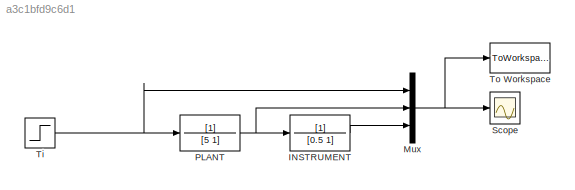
MODEL slx_a3c1bfd9c6d1
KIND model
BLOCK [TransferFcn] INSTRUMENT
  Denominator = [0.5 1]
BLOCK [Mux] Mux
  DisplayOption = bar
  Inputs = 3
  Ports = [3, 1]
BLOCK [TransferFcn] PLANT
  Denominator = [5 1]
BLOCK [Scope] Scope
  Floating = off
  NumInputPorts = 1
  Ports = [1]
  ShowLegends = off
BLOCK [Step] Ti
  After = 10
  SampleTime = 0
BLOCK [ToWorkspace] To Workspace
  FixptAsFi = on
  MaxDataPoints = inf
  Ports = [1]
  SampleTime = -1
  Save2DSignal = 3-D array (concatenate along third dimension)
  SaveFormat = Timeseries
  VariableName = output2
LINE INSTRUMENT:1 -> Mux:3
NET Mux:1 -> Scope:1, To Workspace:1
NET PLANT:1 -> INSTRUMENT:1, Mux:2
NET Ti:1 -> Mux:1, PLANT:1
note: NET lines group one-source signal fan-out (src -> all destinations, sorted); 1:1 wires keep LINE
